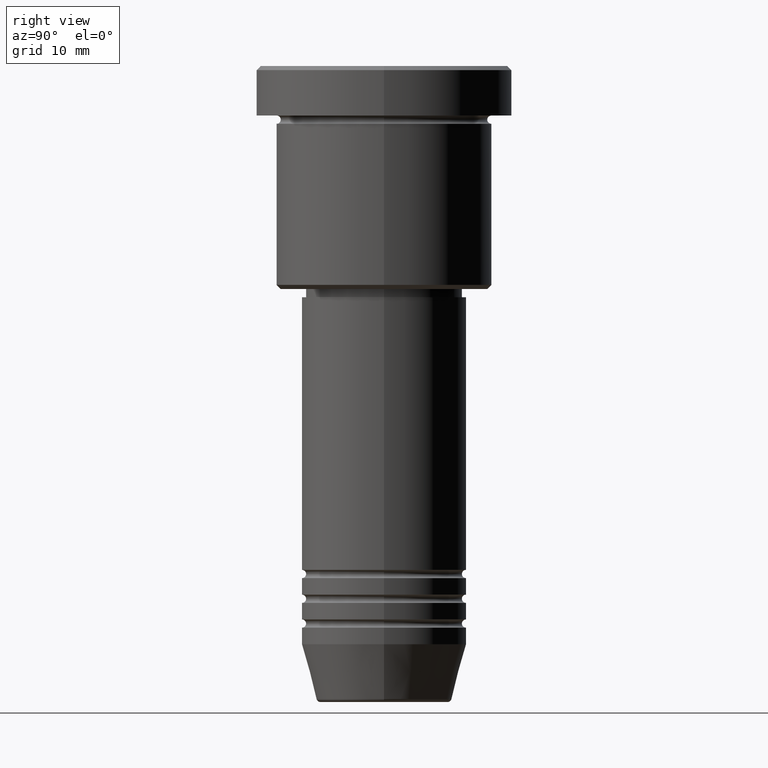
[diagram: clean part render]
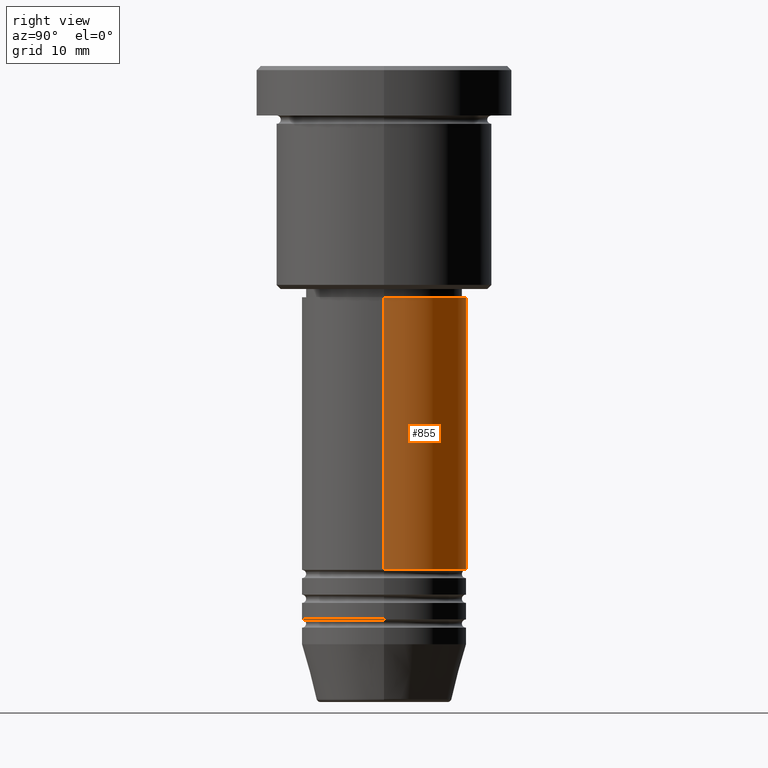
[diagram: same view with one face highlighted and labeled with its STEP entity id]
A machine part, right view. The second image highlights one B-rep face of the part: STEP entity #855.
In plain terms, the highlighted cylindrical surface (partial cylindrical patch) has radius 10 mm, axis along (-0, -0, 1).
Its self-contained STEP definition (entity closure, byte-faithful):
#37 = CIRCLE ( 'NONE', #597, 10.00000000000000000 ) ;
#90 = VERTEX_POINT ( 'NONE', #531 ) ;
#99 = VERTEX_POINT ( 'NONE', #816 ) ;
#106 = CYLINDRICAL_SURFACE ( 'NONE', #441, 10.00000000000000000 ) ;
#130 = DIRECTION ( 'NONE',  ( -0.000000000000000000, -0.000000000000000000, 1.000000000000000000 ) ) ;
#136 = DIRECTION ( 'NONE',  ( 1.000000000000000000, 0.000000000000000000, 0.000000000000000000 ) ) ;
#144 = DIRECTION ( 'NONE',  ( 1.000000000000000000, 0.000000000000000000, 0.000000000000000000 ) ) ;
#198 = DIRECTION ( 'NONE',  ( -0.000000000000000000, -0.000000000000000000, 1.000000000000000000 ) ) ;
#272 = ORIENTED_EDGE ( 'NONE', *, *, #839, .T. ) ;
#372 = CARTESIAN_POINT ( 'NONE',  ( 0.000000000000000000, 0.000000000000000000, -60.99999999999998579 ) ) ;
#441 = AXIS2_PLACEMENT_3D ( 'NONE', #462, #484, #794 ) ;
#462 = CARTESIAN_POINT ( 'NONE',  ( 0.000000000000000000, 0.000000000000000000, 0.000000000000000000 ) ) ;
#484 = DIRECTION ( 'NONE',  ( -0.000000000000000000, -0.000000000000000000, 1.000000000000000000 ) ) ;
#485 = CARTESIAN_POINT ( 'NONE',  ( 0.000000000000000000, 0.000000000000000000, -28.00000000000000711 ) ) ;
#490 = EDGE_LOOP ( 'NONE', ( #272, #1153, #533, #631 ) ) ;
#531 = CARTESIAN_POINT ( 'NONE',  ( -10.00000000000000000, 1.224646799147353256E-15, -28.00000000000000711 ) ) ;
#533 = ORIENTED_EDGE ( 'NONE', *, *, #883, .F. ) ;
#597 = AXIS2_PLACEMENT_3D ( 'NONE', #485, #867, #144 ) ;
#601 = EDGE_CURVE ( 'NONE', #602, #783, #714, .T. ) ;
#602 = VERTEX_POINT ( 'NONE', #922 ) ;
#620 = CIRCLE ( 'NONE', #949, 10.00000000000000000 ) ;
#631 = ORIENTED_EDGE ( 'NONE', *, *, #601, .F. ) ;
#677 = DIRECTION ( 'NONE',  ( -0.000000000000000000, -0.000000000000000000, 1.000000000000000000 ) ) ;
#714 = LINE ( 'NONE', #1083, #894 ) ;
#767 = LINE ( 'NONE', #963, #1077 ) ;
#783 = VERTEX_POINT ( 'NONE', #1042 ) ;
#794 = DIRECTION ( 'NONE',  ( 1.000000000000000000, 0.000000000000000000, 0.000000000000000000 ) ) ;
#816 = CARTESIAN_POINT ( 'NONE',  ( -10.00000000000000000, 1.224646799147353256E-15, -60.99999999999998579 ) ) ;
#839 = EDGE_CURVE ( 'NONE', #602, #99, #620, .T. ) ;
#855 = ADVANCED_FACE ( 'NONE', ( #1065 ), #106, .T. ) ;
#867 = DIRECTION ( 'NONE',  ( -0.000000000000000000, -0.000000000000000000, 1.000000000000000000 ) ) ;
#883 = EDGE_CURVE ( 'NONE', #783, #90, #37, .T. ) ;
#894 = VECTOR ( 'NONE', #198, 1000.000000000000000 ) ;
#922 = CARTESIAN_POINT ( 'NONE',  ( 10.00000000000000000, 0.000000000000000000, -60.99999999999998579 ) ) ;
#944 = EDGE_CURVE ( 'NONE', #99, #90, #767, .T. ) ;
#949 = AXIS2_PLACEMENT_3D ( 'NONE', #372, #677, #136 ) ;
#963 = CARTESIAN_POINT ( 'NONE',  ( -10.00000000000000000, 1.224646799147353256E-15, 0.000000000000000000 ) ) ;
#1042 = CARTESIAN_POINT ( 'NONE',  ( 10.00000000000000000, 0.000000000000000000, -28.00000000000000711 ) ) ;
#1065 = FACE_OUTER_BOUND ( 'NONE', #490, .T. ) ;
#1077 = VECTOR ( 'NONE', #130, 1000.000000000000000 ) ;
#1083 = CARTESIAN_POINT ( 'NONE',  ( 10.00000000000000000, 0.000000000000000000, 0.000000000000000000 ) ) ;
#1153 = ORIENTED_EDGE ( 'NONE', *, *, #944, .T. ) ;